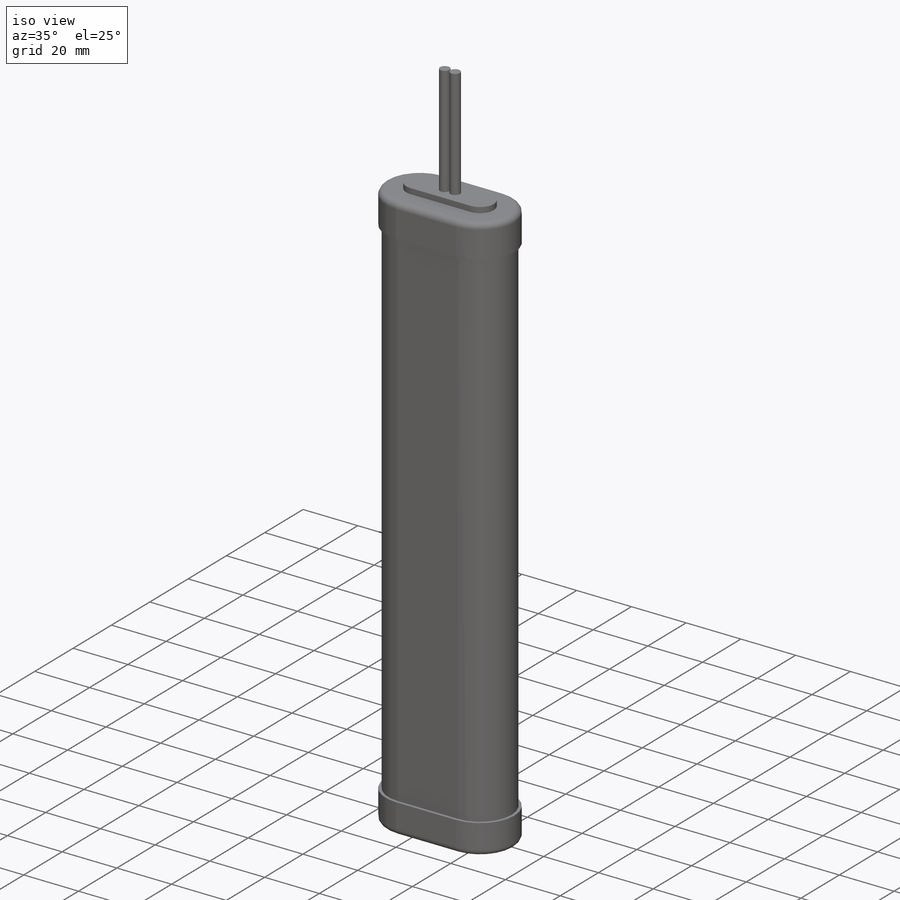
[diagram: iso view]
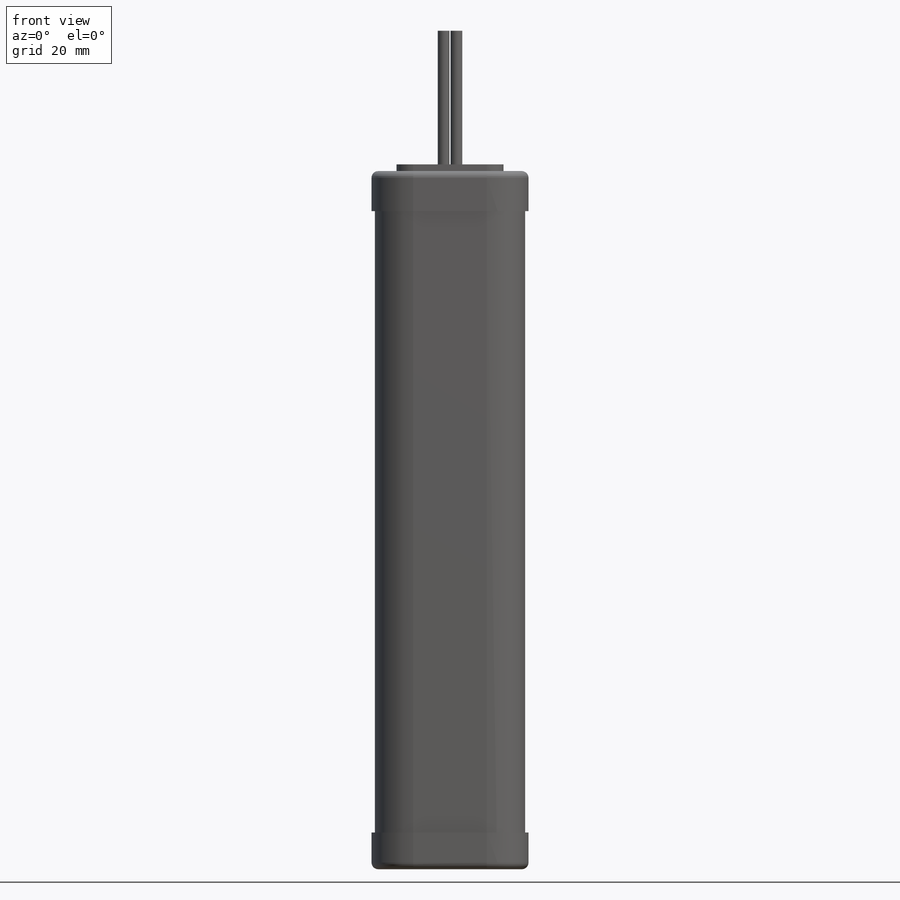
[diagram: front view]
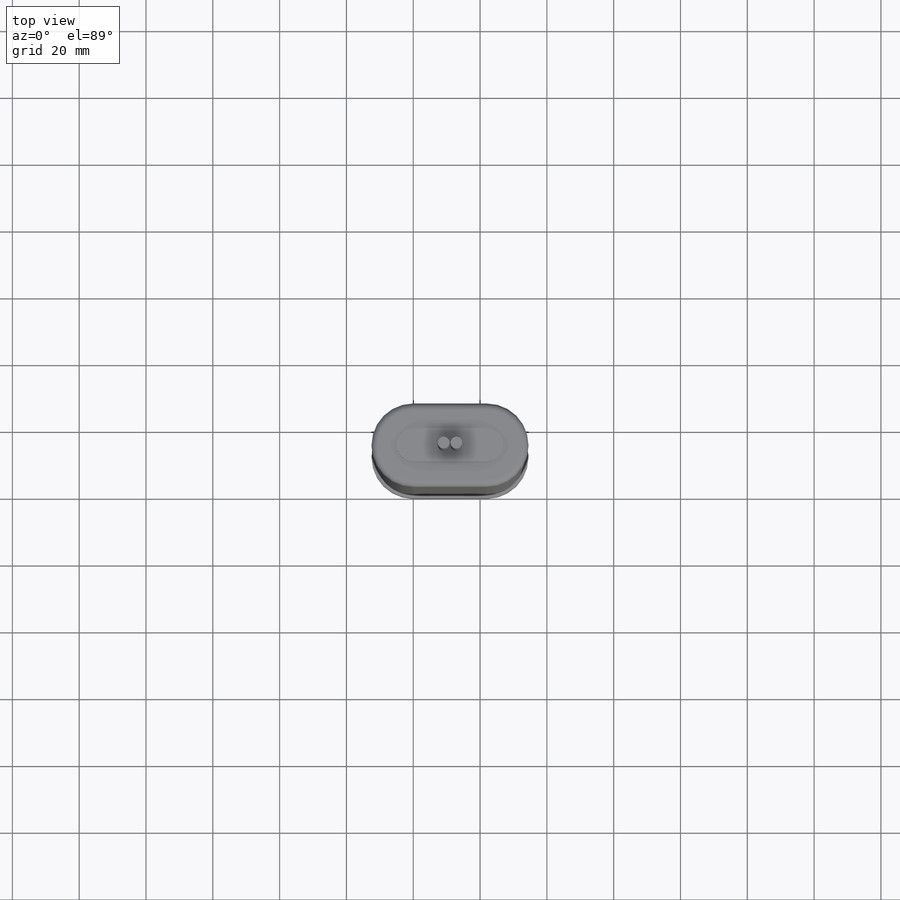
[diagram: top view]
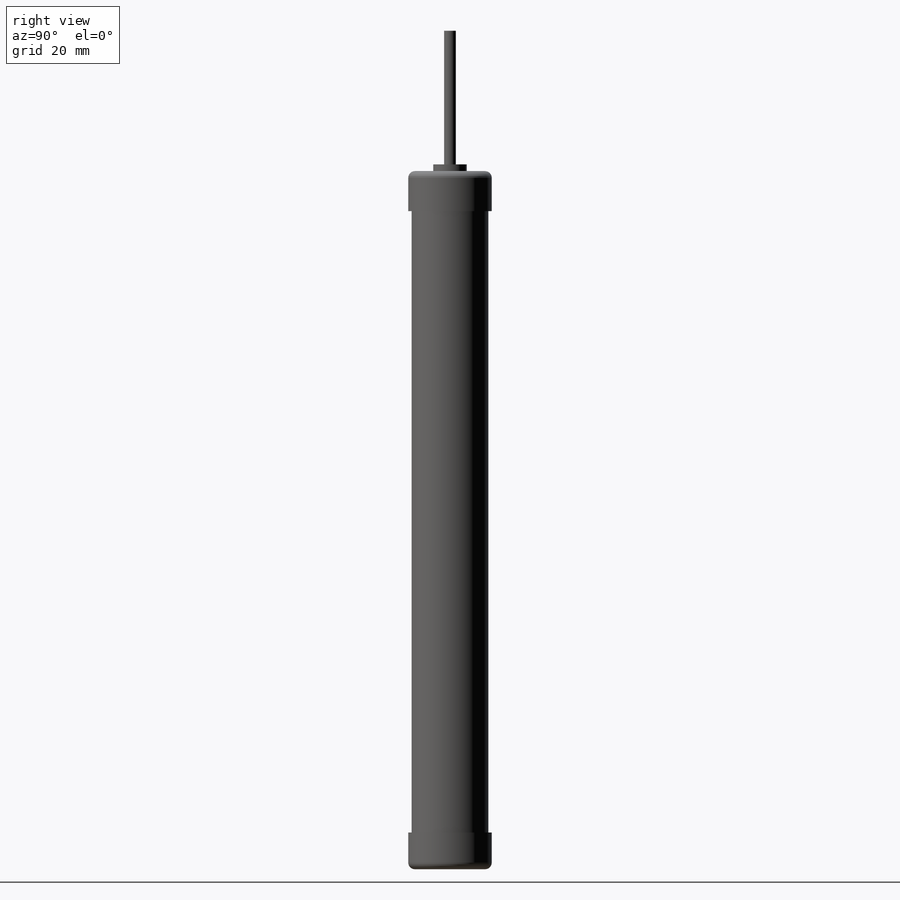
[diagram: right view]
SOLIDWORKS PART (.sldprt)
format: sldprt  version: not decoded by parser v0  size: 193,024 bytes
history: native  units: mm
features: sketch x5, extrude x5, plane x3, material x1, fillet x1 (+9 scaffold rows collapsed)
feature tree (24):
  scaffold x9  (default folders/planes/origin — collapsed)
  material  "Material <not specified>"
  plane  "Face"
  plane  "Dessus"
  plane  "Droite"
  sketch  "Esquisse1"  dims[D1=12.5mm D2=22.0mm]
  extrude  "Extrusion1"  Depth=11mm
  sketch  "Esquisse3"  dims[D1=11.5mm]
  extrude  "Extrusion3"  Depth=186mm
  sketch  "Esquisse4"
  extrude  "Extrusion4"  Depth=12mm
  sketch  "Esquisse5"  dims[D1=5.0mm]
  extrude  "Extrusion5"  Depth=2mm
  fillet  "Congé1"  Radius=2mm
  sketch  "Esquisse6"  dims[D1=3.5mm D2=1.9mm]
  extrude  "Extrusion6"  Depth=40mm
decode coverage: 10 of 11 modeling features carry decoded parameters
note: suppression state not decoded; provenance and decode notes live in map.json
